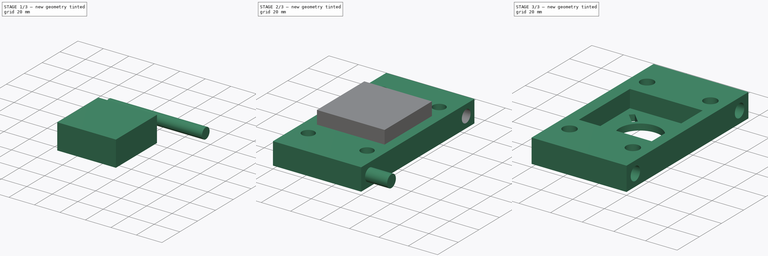
[diagram: build sequence overview — one tinted view per stage of 3, left to right]
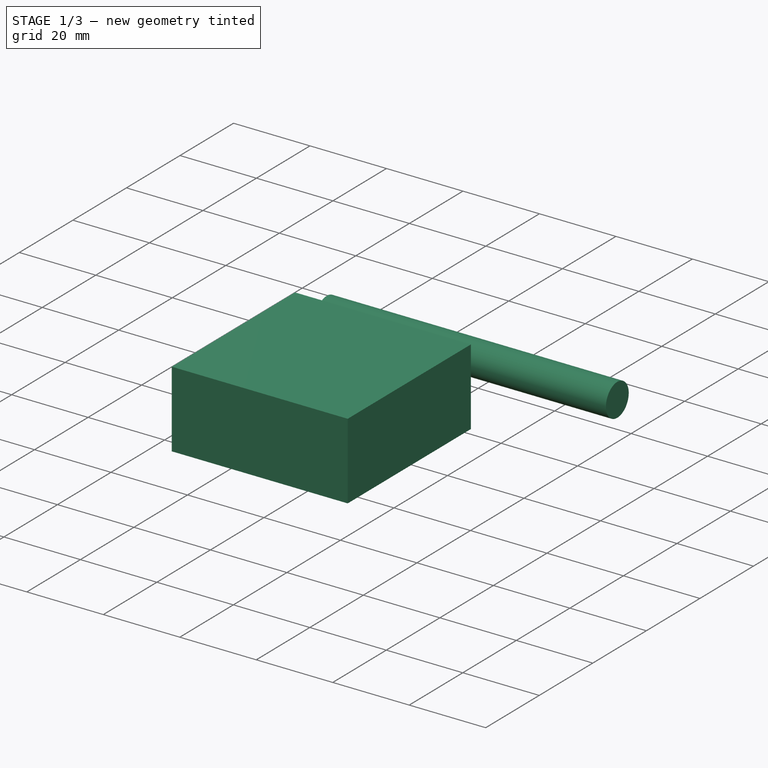
[diagram: stage 1 of 3 — iso view after this stage's code; geometry added in this stage tinted green]
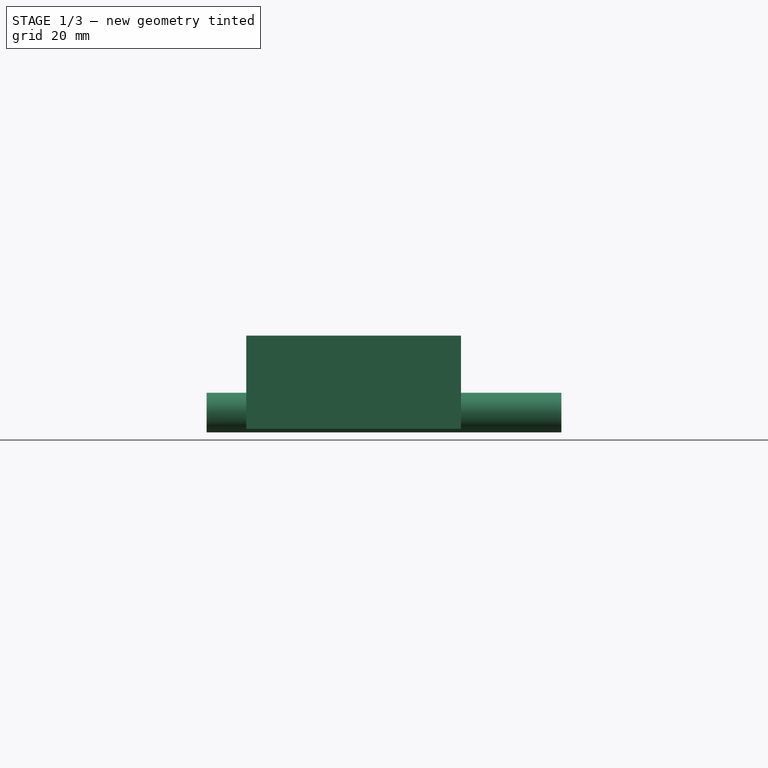
[diagram: stage 1 of 3 — front view after this stage's code; geometry added in this stage tinted green]
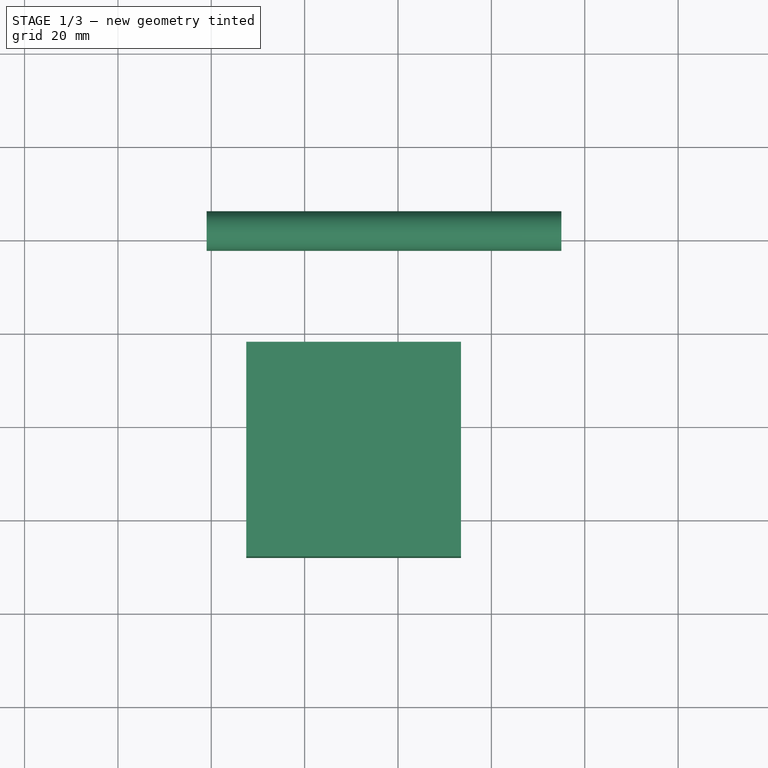
[diagram: stage 1 of 3 — top view after this stage's code; geometry added in this stage tinted green]
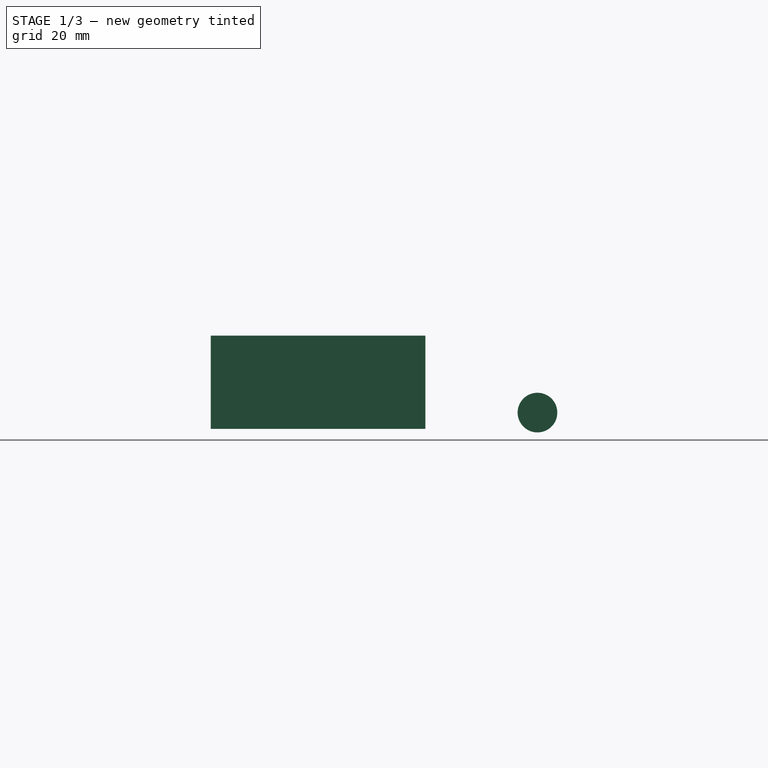
[diagram: stage 1 of 3 — right view after this stage's code; geometry added in this stage tinted green]
FCSTD DOCUMENT  (FreeCAD 0.14R3702 (Git))
Label: estructura_cortadora
License: CC-BY 3.0
LicenseURL: http://creativecommons.org/licenses/by/3.0/
objects: Part::Cut×3, Part::Cylinder×2, Sketcher::SketchObject×1, PartDesign::Pad×1, Part::Box×1
note: 9 computed .brp shape members not serialized (recipe doc carries the construction recipe); baked Part::Feature solids carry a one-line shape summary decoded from their .brp

FEATURE [Part::Cylinder] Cylinder  label="Cilindro"
  Angle = 360
  Height = 76
  Placement = pos=(-1,102,7.5) rot=(0,1,0;1.5708rad)
  Radius = 4.25
FEATURE [Part::Box] Box  label="Cubo"
  Height = 20
  Length = 46
  Placement = pos=(7.5,32,4) rot=(0,0,1;0rad)
  Width = 46
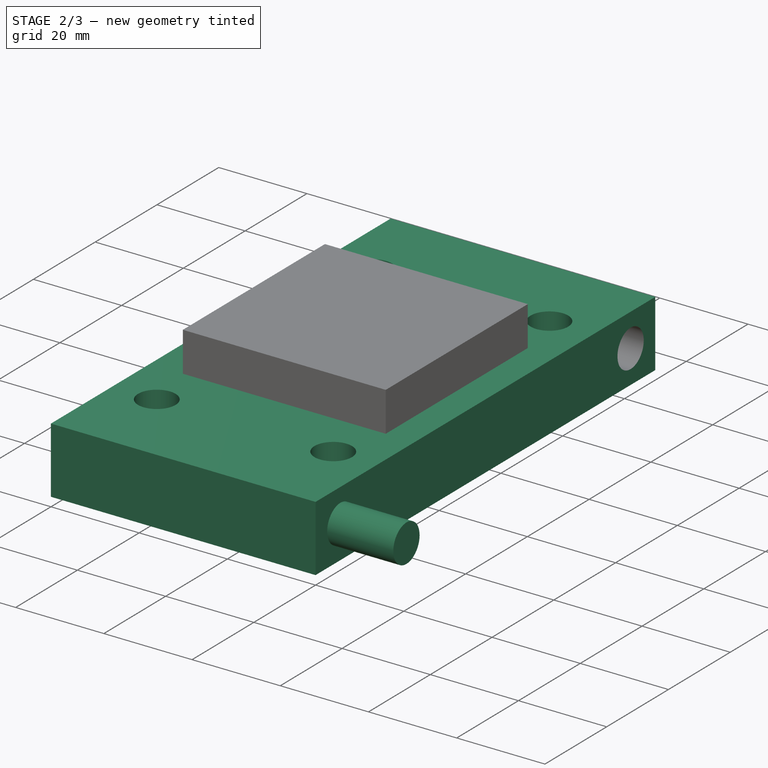
[diagram: stage 2 of 3 — iso view after this stage's code; geometry added in this stage tinted green]
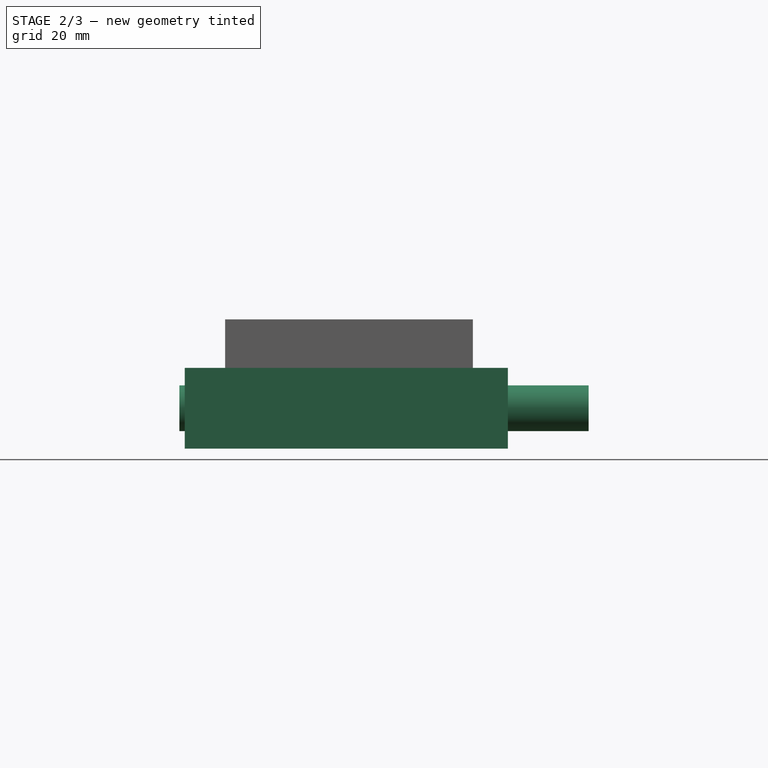
[diagram: stage 2 of 3 — front view after this stage's code; geometry added in this stage tinted green]
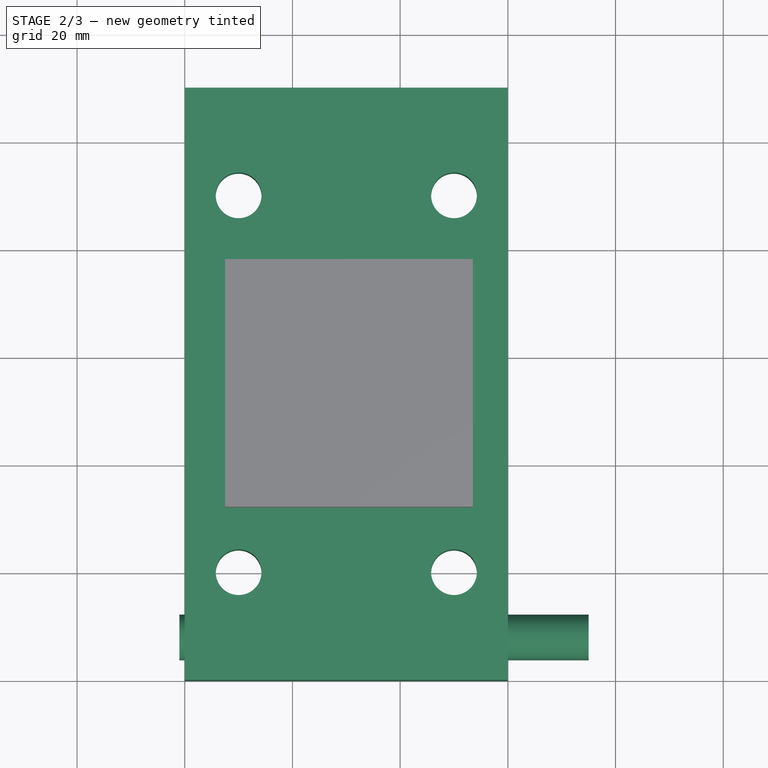
[diagram: stage 2 of 3 — top view after this stage's code; geometry added in this stage tinted green]
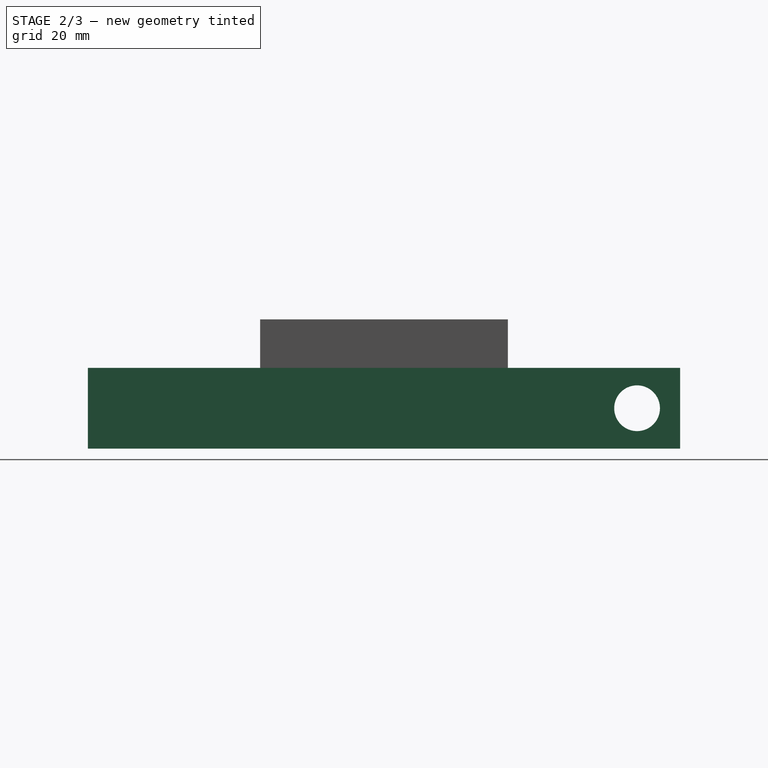
[diagram: stage 2 of 3 — right view after this stage's code; geometry added in this stage tinted green]
FEATURE [Sketcher::SketchObject] Sketch
  sketch-geometry (25):
    g0: LineSegment StartX=0 StartY=0 StartZ=0 EndX=60 EndY=0 EndZ=0
    g1: LineSegment StartX=60 StartY=0 StartZ=0 EndX=60 EndY=110 EndZ=0
    g2: LineSegment StartX=60 StartY=110 StartZ=0 EndX=0 EndY=110 EndZ=0
    g3: LineSegment StartX=0 StartY=110 StartZ=0 EndX=0 EndY=0 EndZ=0
    g4: Circle CenterX=10 CenterY=20 CenterZ=0 NormalX=0 NormalY=0 NormalZ=1 Radius=4.25
    g5: Circle CenterX=50 CenterY=20 CenterZ=0 NormalX=0 NormalY=0 NormalZ=1 Radius=4.25
    g6: Circle CenterX=10 CenterY=90 CenterZ=0 NormalX=0 NormalY=0 NormalZ=1 Radius=4.25
    g7: Circle CenterX=50 CenterY=90 CenterZ=0 NormalX=0 NormalY=0 NormalZ=1 Radius=4.25
    g8: Circle CenterX=30 CenterY=55 CenterZ=0 NormalX=0 NormalY=0 NormalZ=1 Radius=13
    g9: LineSegment StartX=39.826 StartY=67.0888 StartZ=0 EndX=46.19 EndY=73.4527 EndZ=0
    g10: LineSegment StartX=46.19 StartY=73.4527 StartZ=0 EndX=48.4527 EndY=71.19 EndZ=0
    g11: LineSegment StartX=48.4527 StartY=71.19 StartZ=0 EndX=42.0888 EndY=64.826 EndZ=0
    g12: LineSegment StartX=42.0888 StartY=64.826 StartZ=0 EndX=39.826 EndY=67.0888 EndZ=0
    g13: LineSegment StartX=39.826 StartY=42.9112 StartZ=0 EndX=42.0888 EndY=45.174 EndZ=0
    g14: LineSegment StartX=42.0888 StartY=45.174 StartZ=0 EndX=48.4527 EndY=38.81 EndZ=0
    g15: LineSegment StartX=48.4527 StartY=38.81 StartZ=0 EndX=46.19 EndY=36.5473 EndZ=0
    g16: LineSegment StartX=46.19 StartY=36.5473 StartZ=0 EndX=39.826 EndY=42.9112 EndZ=0
    g17: LineSegment StartX=11.5473 StartY=71.19 StartZ=0 EndX=13.81 EndY=73.4527 EndZ=0
    g18: LineSegment StartX=13.81 StartY=73.4527 StartZ=0 EndX=20.174 EndY=67.0888 EndZ=0
    g19: LineSegment StartX=20.174 StartY=67.0888 StartZ=0 EndX=17.9112 EndY=64.826 EndZ=0
    g20: LineSegment StartX=17.9112 StartY=64.826 StartZ=0 EndX=11.5473 EndY=71.19 EndZ=0
    g21: LineSegment StartX=11.5473 StartY=38.81 StartZ=0 EndX=17.9112 EndY=45.174 EndZ=0
    g22: LineSegment StartX=17.9112 StartY=45.174 StartZ=0 EndX=20.174 EndY=42.9112 EndZ=0
    g23: LineSegment StartX=20.174 StartY=42.9112 StartZ=0 EndX=13.81 EndY=36.5473 EndZ=0
    g24: LineSegment StartX=13.81 StartY=36.5473 StartZ=0 EndX=11.5473 EndY=38.81 EndZ=0
  constraints (74):
    c: Coincident(g0,g1)
    c: Coincident(g1,g2)
    c: Coincident(g2,g3)
    c: Coincident(g3,g0)
    c: Horizontal(g0)
    c: Horizontal(g2)
    c: Vertical(g1)
    c: Vertical(g3)
    c: Coincident(g0,g-1)
    c: Distance(g0) = 60
    c: Distance(g3) = 110
    c: Radius(g6) = 4.25
    c: Radius(g7) = 4.25
    c: Radius(g4) = 4.25
    c: Radius(g5) = 4.25
    c: DistanceY(g7,g6) = 0
    c: DistanceY(g4,g5) = 0
    c: DistanceX(g7,g5) = 0
    c: DistanceX(g6,g4) = 0
    c: DistanceX(g4,g5) = 40
    c: DistanceY(g4,g6) = 70
    c: DistanceY(g-1,g4) = 20
    c: DistanceY(g8,g0) = -55
    c: Radius(g8) = 13
    c: DistanceX(g-1,g8) = 30
    c: Coincident(g9,g10)
    c: Coincident(g10,g11)
    c: Coincident(g11,g12)
    c: Coincident(g12,g9)
    c: Coincident(g13,g14)
    c: Coincident(g14,g15)
    c: Coincident(g15,g16)
    c: Coincident(g16,g13)
    c: Coincident(g17,g18)
    c: Coincident(g18,g19)
    c: Coincident(g19,g20)
    c: Coincident(g20,g17)
    c: Coincident(g21,g22)
    c: Coincident(g22,g23)
    c: Coincident(g23,g24)
    c: Coincident(g24,g21)
    c: Angle(g0,g23) = 0.785398
    c: Perpendicular(g24,g23)
    c: DistanceX(g-1,g4) = 10
    c: Distance(g24) = 3.2
    c: Distance(g23) = 9
    c: Equal(g23,g21)
    c: Equal(g22,g24)
    c: Parallel(g22,g12)
    c: Parallel(g10,g12)
    c: Parallel(g21,g9)
    c: Parallel(g11,g9)
    c: Distance(g11) = 9
    c: Distance(g10) = 3.2
    c: Parallel(g22,g14)
    c: Parallel(g16,g14)
    c: Parallel(g13,g11)
    c: Parallel(g15,g13)
    c: Distance(g14) = 9
    c: Distance(g15) = 3.2
    c: Distance(g17) = 3.2
    c: Distance(g20) = 9
    c: Parallel(g19,g13)
    c: Parallel(g17,g19)
    c: Perpendicular(g19,g20)
    c: Parallel(g20,g18)
    c: DistanceY(g22,g13) = 0
    c: DistanceY(g18,g9) = 0
    c: DistanceX(g13,g11) = 0
    c: DistanceX(g19,g21) = 0
    c: DistanceX(g17,g9) = 32.38
    c: DistanceY(g10,g14) = -32.38
    c: DistanceX(g8,g17) = -16.19
    c: DistanceY(g8,g10) = 16.19
FEATURE [PartDesign::Pad] Pad
  Length = 15
  Length2 = 100
  Sketch = -> Sketch
  Type = 0
FEATURE [Part::Cylinder] Cylinder001  label="Cilindro001"
  Angle = 360
  Height = 76
  Placement = pos=(-1,8,7.5) rot=(0,1,0;1.5708rad)
  Radius = 4.25
FEATURE [Part::Cut] Cut
  Base = -> Pad
  Tool = -> Cylinder
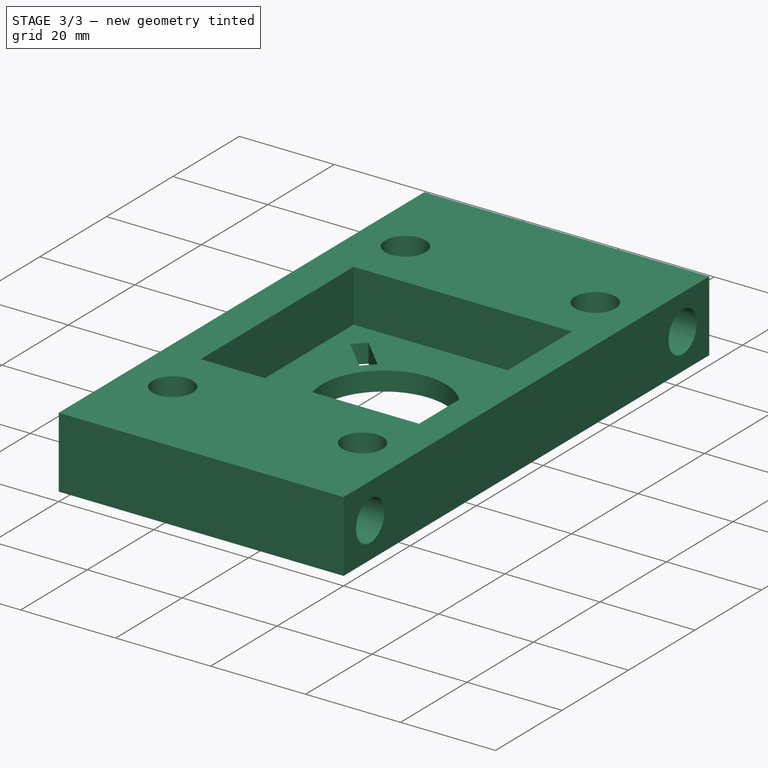
[diagram: stage 3 of 3 — iso view after this stage's code; geometry added in this stage tinted green]
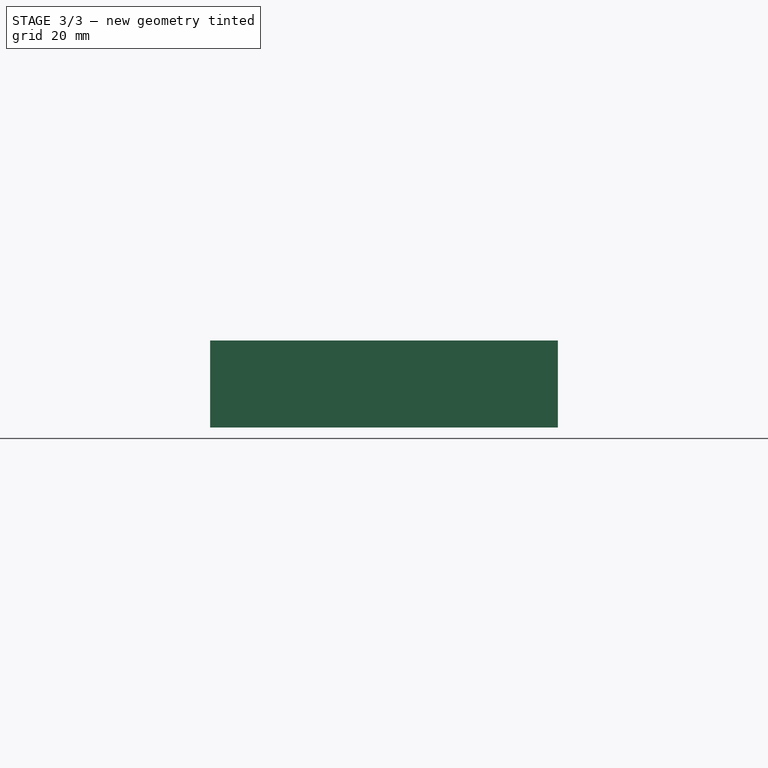
[diagram: stage 3 of 3 — front view after this stage's code; geometry added in this stage tinted green]
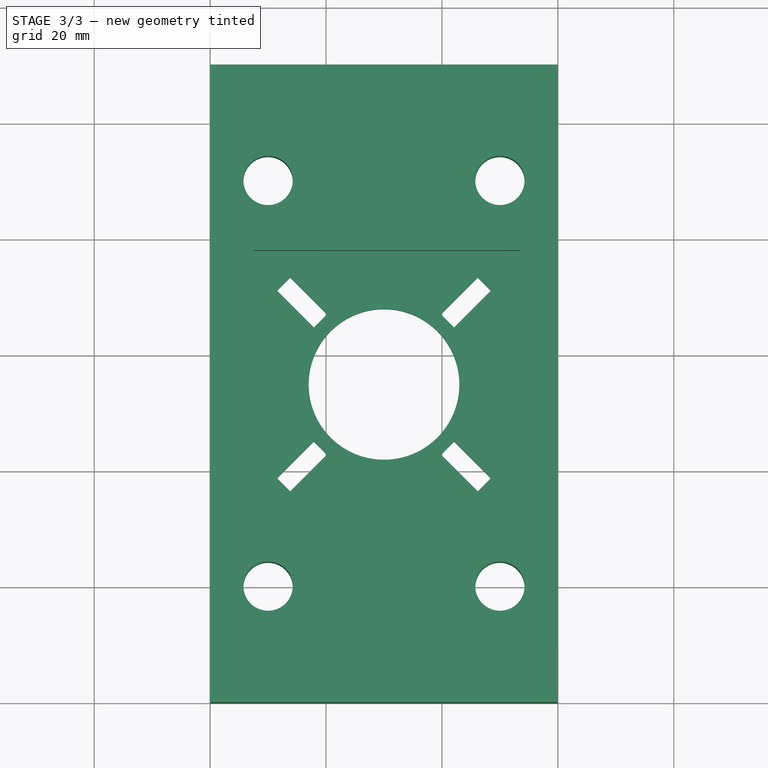
[diagram: stage 3 of 3 — top view after this stage's code; geometry added in this stage tinted green]
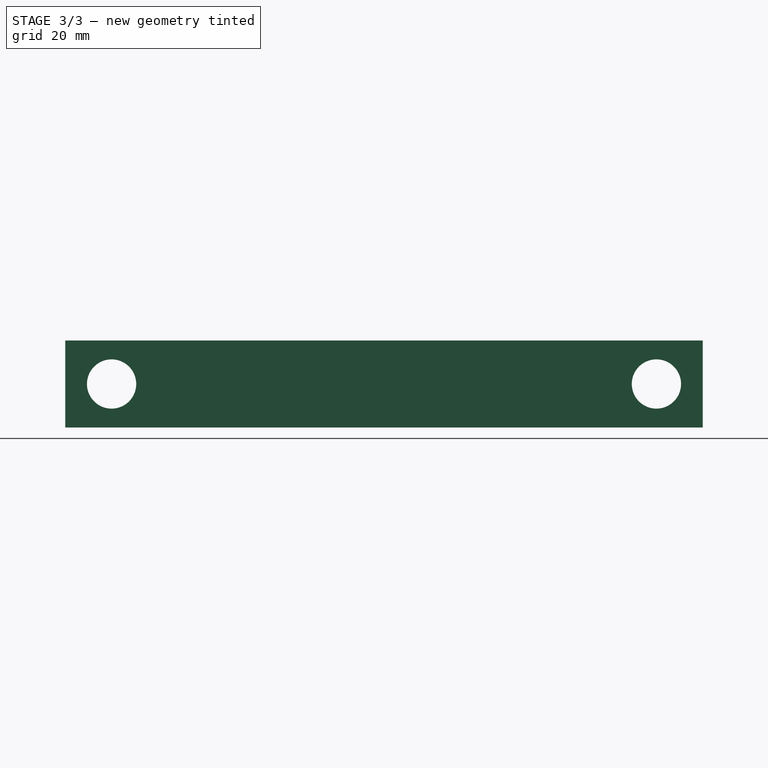
[diagram: stage 3 of 3 — right view after this stage's code; geometry added in this stage tinted green]
FEATURE [Part::Cut] Cut001
  Base = -> Cut
  Tool = -> Cylinder001
FEATURE [Part::Cut] Cut002
  Base = -> Cut001
  Tool = -> Box
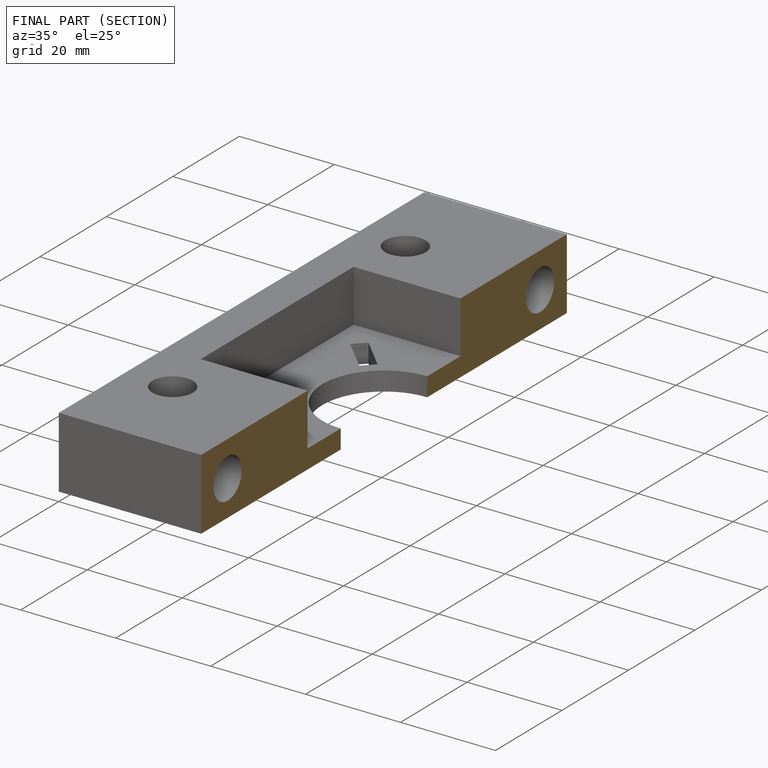
[diagram: finished part — half-section view (interior)]
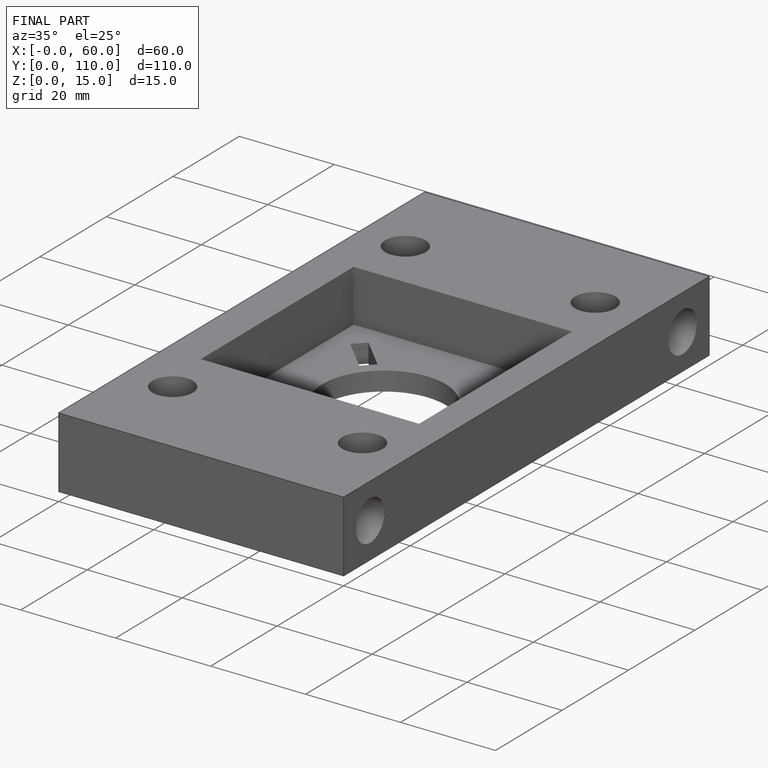
[diagram: finished part — iso view with bounding-box wireframe]
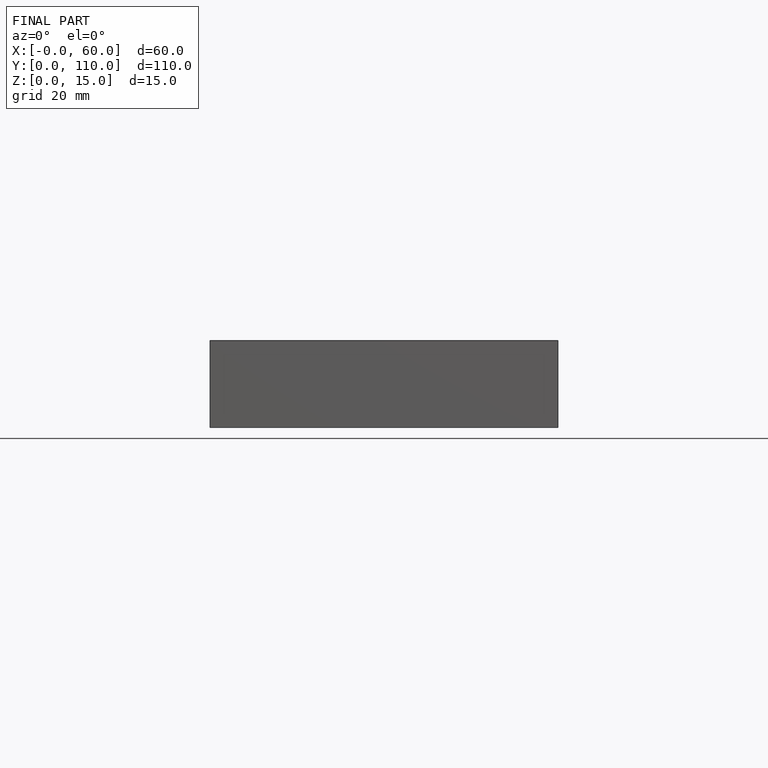
[diagram: finished part — front view with bounding-box wireframe]
